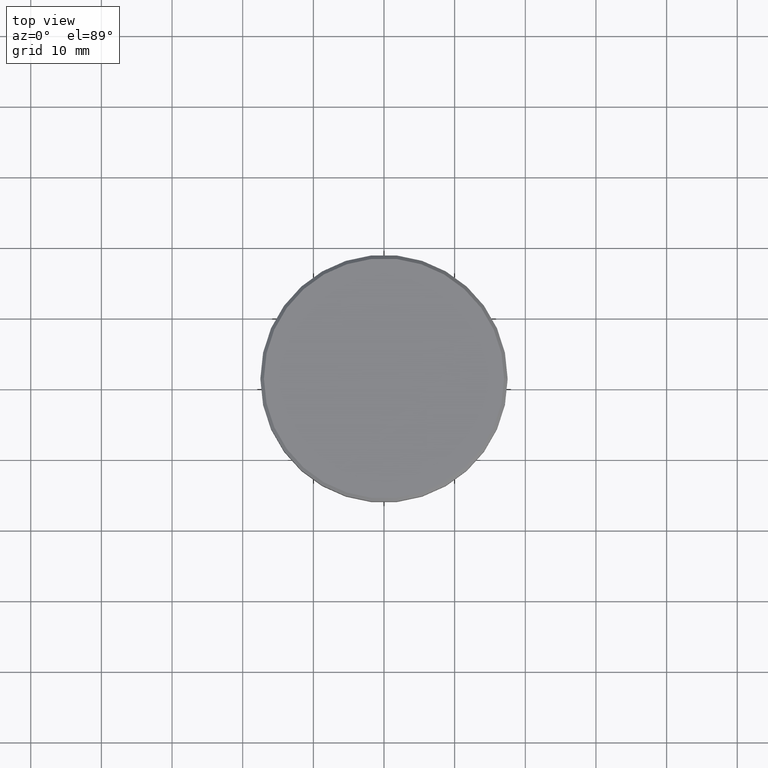
[diagram: clean part render]
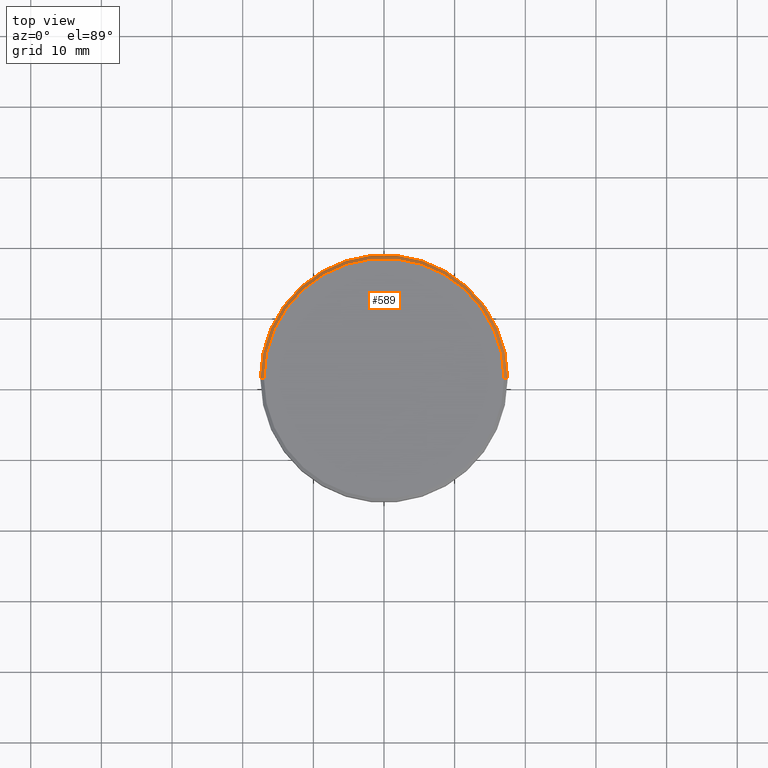
[diagram: same view with one face highlighted and labeled with its STEP entity id]
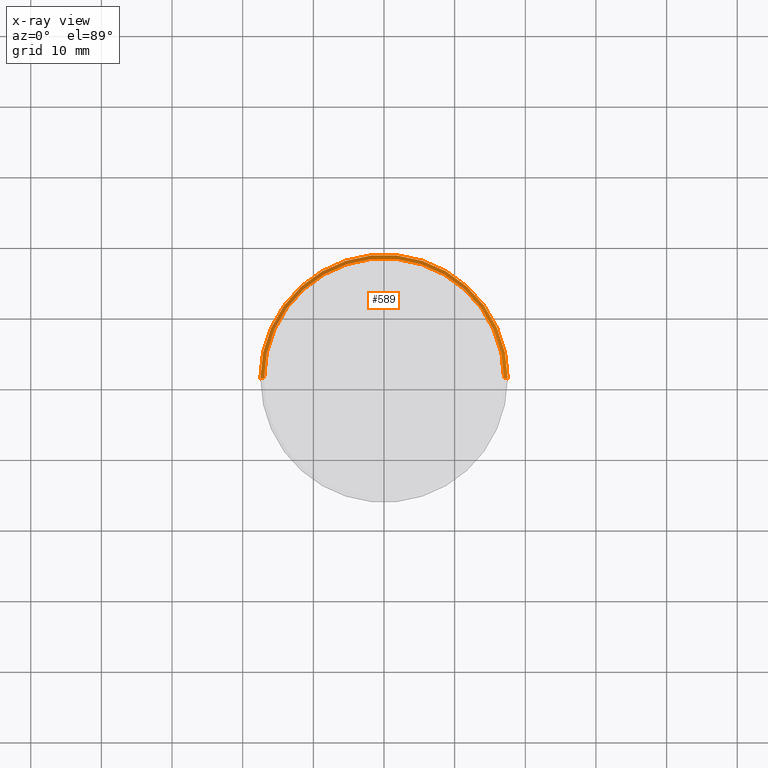
[diagram: x-ray of the same camera — body ghosted, the highlighted face saturated]
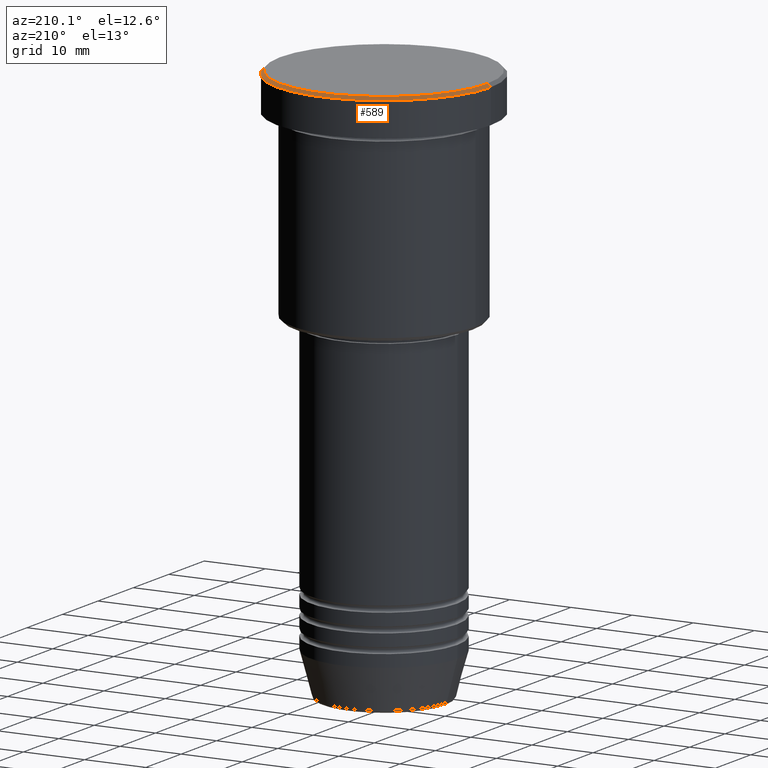
[diagram: same view with one face highlighted and labeled with its STEP entity id]
A machine part, top view. The second image highlights one B-rep face of the part: STEP entity #589.
The next image is the same camera in x-ray: the body ghosted, the highlighted face saturated — about 0% of this face is hidden behind the body in this view.
A second angle (auxiliary view) of the same face is appended — the face is thin or edge-on in the first view.
In plain terms, the highlighted conical surface has half-angle 45 deg.
Its self-contained STEP definition (entity closure, byte-faithful):
#4 = EDGE_CURVE ( 'NONE', #373, #596, #190, .T. ) ;
#108 = VECTOR ( 'NONE', #1105, 1000.000000000000000 ) ;
#150 = AXIS2_PLACEMENT_3D ( 'NONE', #428, #641, #618 ) ;
#190 = CIRCLE ( 'NONE', #150, 17.00000000000000000 ) ;
#202 = CARTESIAN_POINT ( 'NONE',  ( 17.00000000000000000, 2.112515728529184067E-15, 0.000000000000000000 ) ) ;
#222 = ORIENTED_EDGE ( 'NONE', *, *, #4, .F. ) ;
#238 = AXIS2_PLACEMENT_3D ( 'NONE', #676, #1027, #744 ) ;
#297 = AXIS2_PLACEMENT_3D ( 'NONE', #644, #1183, #1117 ) ;
#373 = VERTEX_POINT ( 'NONE', #202 ) ;
#377 = FACE_OUTER_BOUND ( 'NONE', #849, .T. ) ;
#408 = CARTESIAN_POINT ( 'NONE',  ( 17.00000000000000000, 2.081899558550500280E-15, 0.000000000000000000 ) ) ;
#428 = CARTESIAN_POINT ( 'NONE',  ( 0.000000000000000000, 0.000000000000000000, 0.000000000000000000 ) ) ;
#431 = VECTOR ( 'NONE', #772, 1000.000000000000000 ) ;
#459 = EDGE_CURVE ( 'NONE', #373, #806, #606, .T. ) ;
#521 = CARTESIAN_POINT ( 'NONE',  ( 17.50000000000000000, 0.000000000000000000, -0.5000000000000142109 ) ) ;
#540 = CARTESIAN_POINT ( 'NONE',  ( -17.50000000000000000, 2.143131898507868248E-15, -0.5000000000000142109 ) ) ;
#543 = LINE ( 'NONE', #990, #108 ) ;
#555 = ORIENTED_EDGE ( 'NONE', *, *, #928, .F. ) ;
#586 = ORIENTED_EDGE ( 'NONE', *, *, #459, .T. ) ;
#589 = ADVANCED_FACE ( 'NONE', ( #377 ), #810, .T. ) ;
#596 = VERTEX_POINT ( 'NONE', #838 ) ;
#604 = ORIENTED_EDGE ( 'NONE', *, *, #1147, .F. ) ;
#606 = LINE ( 'NONE', #408, #431 ) ;
#618 = DIRECTION ( 'NONE',  ( 1.000000000000000000, 0.000000000000000000, 0.000000000000000000 ) ) ;
#641 = DIRECTION ( 'NONE',  ( -0.000000000000000000, -0.000000000000000000, 1.000000000000000000 ) ) ;
#644 = CARTESIAN_POINT ( 'NONE',  ( 0.000000000000000000, 0.000000000000000000, 0.000000000000000000 ) ) ;
#676 = CARTESIAN_POINT ( 'NONE',  ( 0.000000000000000000, 0.000000000000000000, -0.5000000000000142109 ) ) ;
#744 = DIRECTION ( 'NONE',  ( 1.000000000000000000, 0.000000000000000000, 0.000000000000000000 ) ) ;
#772 = DIRECTION ( 'NONE',  ( 0.7071067811865378028, 8.659560562354814529E-17, -0.7071067811865573427 ) ) ;
#806 = VERTEX_POINT ( 'NONE', #521 ) ;
#810 = CONICAL_SURFACE ( 'NONE', #297, 17.00000000000000000, 0.7853981633974346233 ) ;
#838 = CARTESIAN_POINT ( 'NONE',  ( -17.00000000000000000, 0.000000000000000000, 0.000000000000000000 ) ) ;
#840 = VERTEX_POINT ( 'NONE', #540 ) ;
#849 = EDGE_LOOP ( 'NONE', ( #222, #586, #604, #555 ) ) ;
#928 = EDGE_CURVE ( 'NONE', #596, #840, #543, .T. ) ;
#990 = CARTESIAN_POINT ( 'NONE',  ( -17.00000000000000000, 0.000000000000000000, 0.000000000000000000 ) ) ;
#1020 = CIRCLE ( 'NONE', #238, 17.50000000000000000 ) ;
#1027 = DIRECTION ( 'NONE',  ( 0.000000000000000000, 0.000000000000000000, -1.000000000000000000 ) ) ;
#1105 = DIRECTION ( 'NONE',  ( -0.7071067811865378028, 0.000000000000000000, -0.7071067811865573427 ) ) ;
#1117 = DIRECTION ( 'NONE',  ( -1.000000000000000000, 0.000000000000000000, 0.000000000000000000 ) ) ;
#1147 = EDGE_CURVE ( 'NONE', #840, #806, #1020, .T. ) ;
#1183 = DIRECTION ( 'NONE',  ( 0.000000000000000000, 0.000000000000000000, -1.000000000000000000 ) ) ;